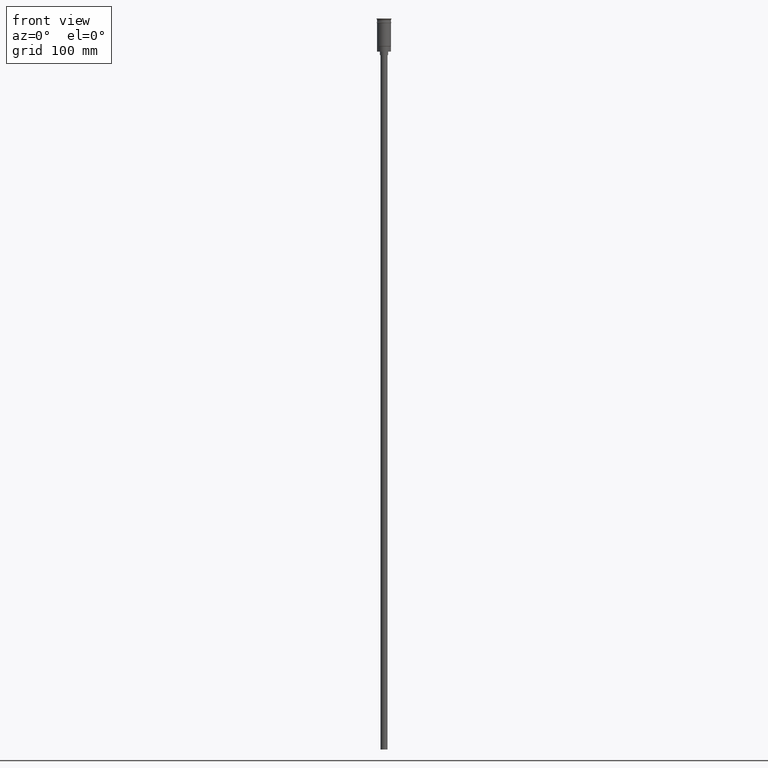
[diagram: clean part render]
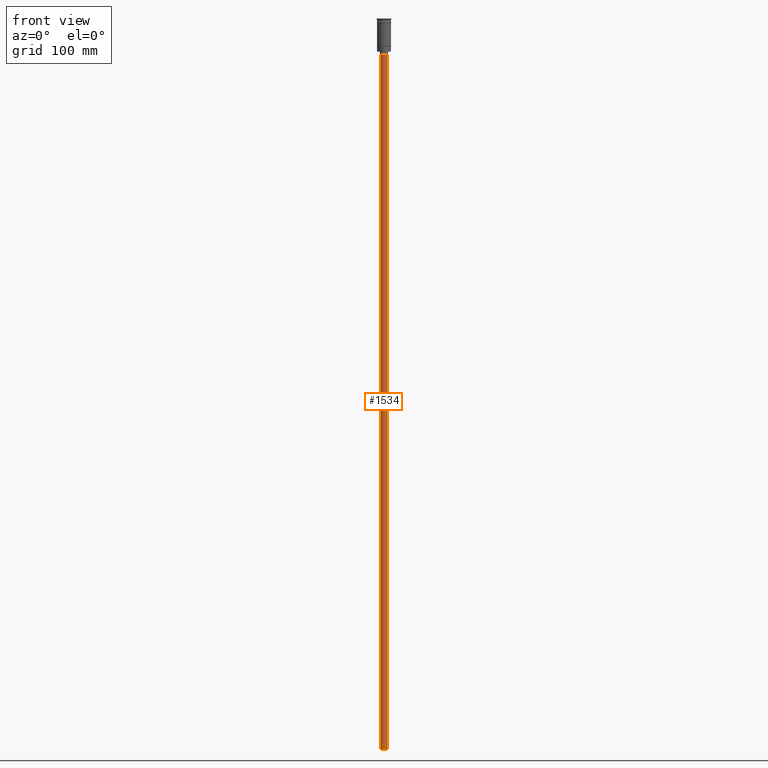
[diagram: same view with one face highlighted and labeled with its STEP entity id]
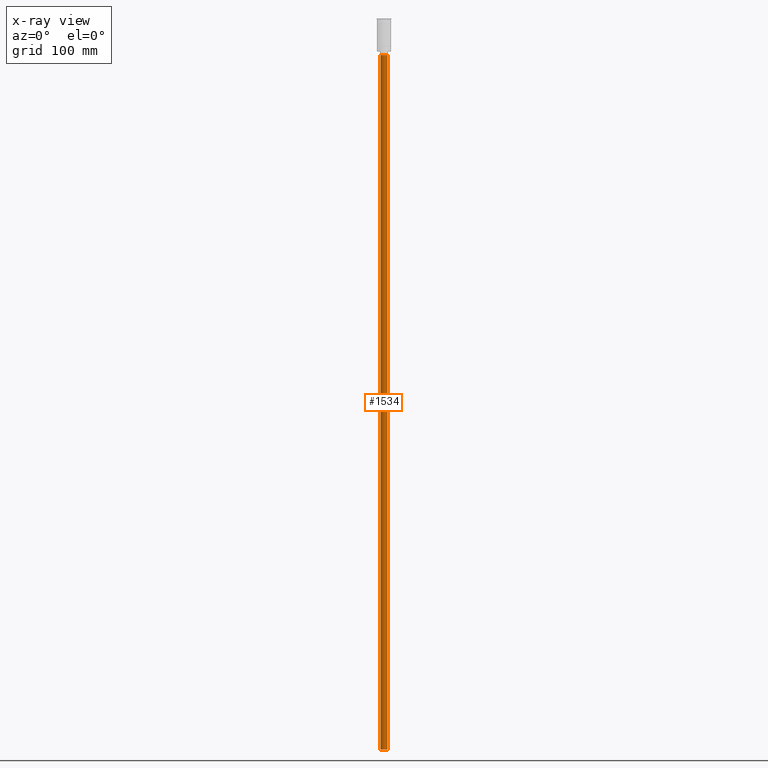
[diagram: x-ray of the same camera — body ghosted, the highlighted face saturated]
A machine part, front view. The second image highlights one B-rep face of the part: STEP entity #1534.
The next image is the same camera in x-ray: the body ghosted, the highlighted face saturated — about 0% of this face is hidden behind the body in this view.
In plain terms, the highlighted cylindrical surface (edge-blend (fillet) strip) has radius 3 mm, axis along (-0, -0, 1).
Its self-contained STEP definition (entity closure, byte-faithful):
#25 = CARTESIAN_POINT ( 'NONE',  ( 0.000000000000000000, 0.000000000000000000, -628.5000000000000000 ) ) ;
#42 = EDGE_CURVE ( 'NONE', #370, #980, #916, .T. ) ;
#51 = VECTOR ( 'NONE', #813, 1000.000000000000000 ) ;
#231 = CIRCLE ( 'NONE', #884, 3.000000000000000444 ) ;
#291 = DIRECTION ( 'NONE',  ( 0.000000000000000000, 0.000000000000000000, -1.000000000000000000 ) ) ;
#328 = CARTESIAN_POINT ( 'NONE',  ( 3.000000000000000444, 0.000000000000000000, -628.5000000000000000 ) ) ;
#344 = AXIS2_PLACEMENT_3D ( 'NONE', #25, #383, #1033 ) ;
#364 = VERTEX_POINT ( 'NONE', #1180 ) ;
#366 = CARTESIAN_POINT ( 'NONE',  ( 0.000000000000000000, 0.000000000000000000, -31.50000000000000000 ) ) ;
#370 = VERTEX_POINT ( 'NONE', #985 ) ;
#383 = DIRECTION ( 'NONE',  ( -0.000000000000000000, -0.000000000000000000, 1.000000000000000000 ) ) ;
#421 = CARTESIAN_POINT ( 'NONE',  ( 0.000000000000000000, 0.000000000000000000, -628.5000000000000000 ) ) ;
#498 = DIRECTION ( 'NONE',  ( -1.000000000000000000, 0.000000000000000000, 0.000000000000000000 ) ) ;
#515 = FACE_OUTER_BOUND ( 'NONE', #1555, .T. ) ;
#537 = ORIENTED_EDGE ( 'NONE', *, *, #1421, .T. ) ;
#559 = CIRCLE ( 'NONE', #1464, 3.000000000000000444 ) ;
#567 = DIRECTION ( 'NONE',  ( -1.000000000000000000, 0.000000000000000000, 0.000000000000000000 ) ) ;
#644 = CARTESIAN_POINT ( 'NONE',  ( -3.000000000000000444, 3.673940397442060361E-16, -31.50000000000000000 ) ) ;
#673 = CARTESIAN_POINT ( 'NONE',  ( 3.000000000000000444, 0.000000000000000000, -31.50000000000000000 ) ) ;
#704 = ORIENTED_EDGE ( 'NONE', *, *, #762, .F. ) ;
#735 = DIRECTION ( 'NONE',  ( -0.000000000000000000, -0.000000000000000000, 1.000000000000000000 ) ) ;
#762 = EDGE_CURVE ( 'NONE', #364, #370, #559, .T. ) ;
#813 = DIRECTION ( 'NONE',  ( -0.000000000000000000, -0.000000000000000000, 1.000000000000000000 ) ) ;
#817 = VERTEX_POINT ( 'NONE', #673 ) ;
#880 = ORIENTED_EDGE ( 'NONE', *, *, #42, .F. ) ;
#884 = AXIS2_PLACEMENT_3D ( 'NONE', #366, #1228, #498 ) ;
#916 = LINE ( 'NONE', #1400, #51 ) ;
#934 = VECTOR ( 'NONE', #735, 1000.000000000000000 ) ;
#980 = VERTEX_POINT ( 'NONE', #644 ) ;
#985 = CARTESIAN_POINT ( 'NONE',  ( -3.000000000000000444, 3.673940397442060361E-16, -628.5000000000000000 ) ) ;
#1033 = DIRECTION ( 'NONE',  ( 1.000000000000000000, 0.000000000000000000, 0.000000000000000000 ) ) ;
#1139 = CYLINDRICAL_SURFACE ( 'NONE', #344, 3.000000000000000444 ) ;
#1180 = CARTESIAN_POINT ( 'NONE',  ( 3.000000000000000444, 0.000000000000000000, -628.5000000000000000 ) ) ;
#1228 = DIRECTION ( 'NONE',  ( 0.000000000000000000, 0.000000000000000000, -1.000000000000000000 ) ) ;
#1296 = ORIENTED_EDGE ( 'NONE', *, *, #1352, .T. ) ;
#1320 = LINE ( 'NONE', #328, #934 ) ;
#1352 = EDGE_CURVE ( 'NONE', #364, #817, #1320, .T. ) ;
#1400 = CARTESIAN_POINT ( 'NONE',  ( -3.000000000000000444, 3.673940397442060361E-16, -628.5000000000000000 ) ) ;
#1421 = EDGE_CURVE ( 'NONE', #817, #980, #231, .T. ) ;
#1464 = AXIS2_PLACEMENT_3D ( 'NONE', #421, #291, #567 ) ;
#1534 = ADVANCED_FACE ( 'NONE', ( #515 ), #1139, .T. ) ;
#1555 = EDGE_LOOP ( 'NONE', ( #880, #704, #1296, #537 ) ) ;